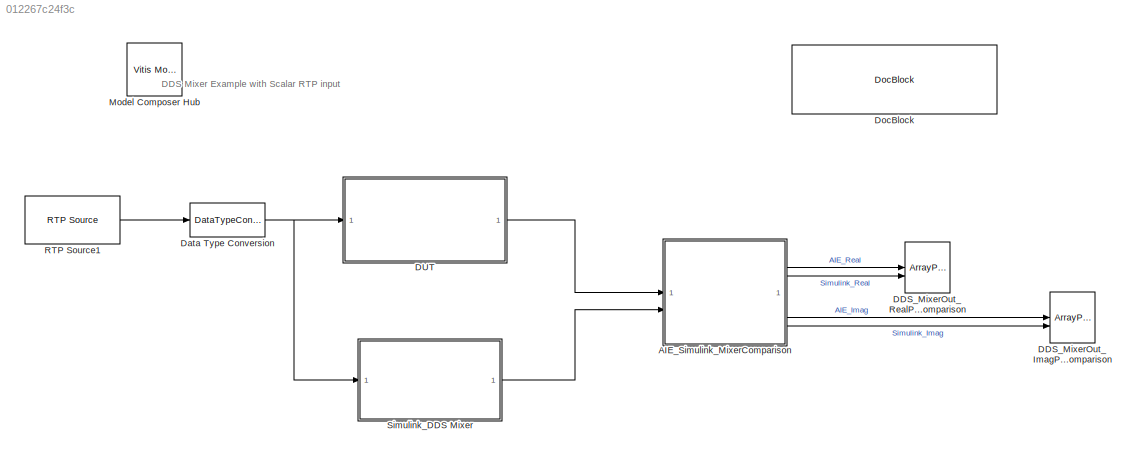
MODEL slx_012267c24f3c
KIND model
CONFIG AbsTol = auto
CONFIG EnableMultiTasking = off
CONFIG FixedStep = auto
CONFIG MaxStep = auto
CONFIG MinStep = auto
CONFIG RelTol = 1e-3
CONFIG SampleTimeConstraint = Unconstrained
CONFIG SolverName = VariableStepAuto
CONFIG StartTime = 0.0
CONFIG StopTime = 0.1
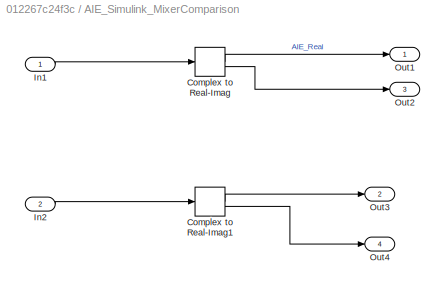
BLOCK [SubSystem] AIE_Simulink_MixerComparison
BLOCK [ComplexToRealImag] AIE_Simulink_MixerComparison/Complex to Real-Imag
BLOCK [ComplexToRealImag] AIE_Simulink_MixerComparison/Complex to Real-Imag1
BLOCK [Inport] AIE_Simulink_MixerComparison/In1
BLOCK [Inport] AIE_Simulink_MixerComparison/In2
  Port = 2
BLOCK [Outport] AIE_Simulink_MixerComparison/Out1
BLOCK [Outport] AIE_Simulink_MixerComparison/Out2
  Port = 3
BLOCK [Outport] AIE_Simulink_MixerComparison/Out3
  Port = 2
BLOCK [Outport] AIE_Simulink_MixerComparison/Out4
  Port = 4
BLOCK [ArrayPlot] DDS_MixerOut_ImagPartComparison
  GraphicalSettings = {"Style":{"BackgroundColor":[0.1568627450980392,0.1568627450980392,0.1568627450980392],"AxesColor":[0,0,0],"LabelsColor":[0.6862745098039216,0.6862745098039216,0.6862745098039216],"PreserveColors":false,"Visible":[true,true],"LineStyle":["-","-"],"LineColor":[[1,1,0.06666666666666667],[0.07450980392156863,0.6235294117647059,1]],"LineWidth":[1.5,1.5],"Marker":[".","."],"FontSize":"small"},"Cursors"...<+537ch>
  NumInputPorts = 2
  PlotType = Line
  ScopeFrameLocation = window
  ShowLegend = on
  Visible = on
  WasSavedAsWebScope = on
  WindowPosition = [6.000000,269.000000,845.000000,423.000000,]
  YLimits = [-562.5,562.5]
BLOCK [ArrayPlot] DDS_MixerOut_RealPartComparison
  GraphicalSettings = {"Style":{"BackgroundColor":[0.1568627450980392,0.1568627450980392,0.1568627450980392],"AxesColor":[0,0,0],"LabelsColor":[0.6862745098039216,0.6862745098039216,0.6862745098039216],"PreserveColors":false,"Visible":[true,true],"LineStyle":["-","-"],"LineColor":[[1,1,0.06666666666666667],[0.07450980392156863,0.6235294117647059,1]],"LineWidth":[1.5,1.5],"Marker":[".","."],"FontSize":"small"},"Cursors"...<+537ch>
  NumInputPorts = 2
  PlotType = Line
  ScopeFrameLocation = window
  ShowLegend = on
  Visible = on
  WasSavedAsWebScope = on
  WindowPosition = [727.000000,139.000000,1272.000000,651.000000,]
  YLimits = [-625,625]
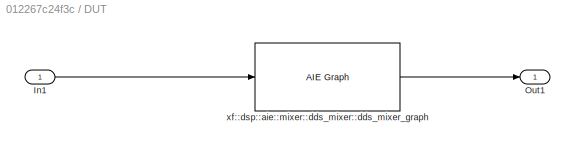
BLOCK [SubSystem] DUT
BLOCK [Inport] DUT/In1
BLOCK [Outport] DUT/Out1
BLOCK [Reference] DUT/xf::dsp::aie::mixer::dds_mixer::dds_mixer_graph  REF=aieBasic/AIE Graph
  SourceBlock = aieBasic/AIE Graph
  SourceType = AIE Graph Function
BLOCK [DataTypeConversion] Data Type Conversion
  OutDataTypeStr = int16
  RndMeth = Floor
  SaturateOnIntegerOverflow = off
BLOCK [Reference] DocBlock  REF=simulink/Model-Wide
Utilities/DocBlock
  SourceBlock = simulink/Model-Wide\nUtilities/DocBlock
  SourceType = DocBlock
  UserDataPersistent = on
BLOCK [Reference] Model Composer Hub  REF=vmcUtilities/Vitis Model Composer Hub
  SourceBlock = vmcUtilities/Vitis Model Composer Hub
  SourceType = VMC Hub
  Tag = genX
  UserDataPersistent = on
BLOCK [Reference] RTP Source1  REF=aieUtilities/RTP Source
  SourceBlock = aieUtilities/RTP Source
  SourceType = RTP Source
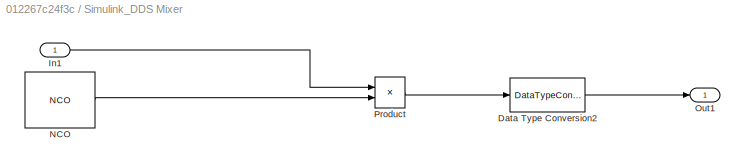
BLOCK [SubSystem] Simulink_DDS Mixer
BLOCK [DataTypeConversion] Simulink_DDS Mixer/Data Type Conversion2
  OutDataTypeStr = int16
  RndMeth = Floor
  SaturateOnIntegerOverflow = off
BLOCK [Inport] Simulink_DDS Mixer/In1
BLOCK [Reference] Simulink_DDS Mixer/NCO  REF=dspsigops/NCO
  SourceBlock = dspsigops/NCO
  SourceType = NCO
BLOCK [Outport] Simulink_DDS Mixer/Out1
BLOCK [Product] Simulink_DDS Mixer/Product
ANNOTATION (root): DDS Mixer Example with Scalar RTP input
LINE AIE_Simulink_MixerComparison/Complex to Real-Imag1:1 -> AIE_Simulink_MixerComparison/Out3:1
LINE AIE_Simulink_MixerComparison/Complex to Real-Imag1:2 -> AIE_Simulink_MixerComparison/Out4:1
LINE AIE_Simulink_MixerComparison/Complex to Real-Imag:1 -> AIE_Simulink_MixerComparison/Out1:1
LINE AIE_Simulink_MixerComparison/Complex to Real-Imag:2 -> AIE_Simulink_MixerComparison/Out2:1
LINE AIE_Simulink_MixerComparison/In1:1 -> AIE_Simulink_MixerComparison/Complex to Real-Imag:1
LINE AIE_Simulink_MixerComparison/In2:1 -> AIE_Simulink_MixerComparison/Complex to Real-Imag1:1
LINE AIE_Simulink_MixerComparison:1 -> DDS_MixerOut_RealPartComparison:1
LINE AIE_Simulink_MixerComparison:2 -> DDS_MixerOut_RealPartComparison:2
LINE AIE_Simulink_MixerComparison:3 -> DDS_MixerOut_ImagPartComparison:1
LINE AIE_Simulink_MixerComparison:4 -> DDS_MixerOut_ImagPartComparison:2
LINE DUT/In1:1 -> DUT/xf::dsp::aie::mixer::dds_mixer::dds_mixer_graph:1
LINE DUT/xf::dsp::aie::mixer::dds_mixer::dds_mixer_graph:1 -> DUT/Out1:1
LINE DUT:1 -> AIE_Simulink_MixerComparison:1
NET Data Type Conversion:1 -> DUT:1, Simulink_DDS Mixer:1
LINE RTP Source1:1 -> Data Type Conversion:1
LINE Simulink_DDS Mixer/Data Type Conversion2:1 -> Simulink_DDS Mixer/Out1:1
LINE Simulink_DDS Mixer/In1:1 -> Simulink_DDS Mixer/Product:1
LINE Simulink_DDS Mixer/NCO:1 -> Simulink_DDS Mixer/Product:2
LINE Simulink_DDS Mixer/Product:1 -> Simulink_DDS Mixer/Data Type Conversion2:1
LINE Simulink_DDS Mixer:1 -> AIE_Simulink_MixerComparison:2
note: NET lines group one-source signal fan-out (src -> all destinations, sorted); 1:1 wires keep LINE
